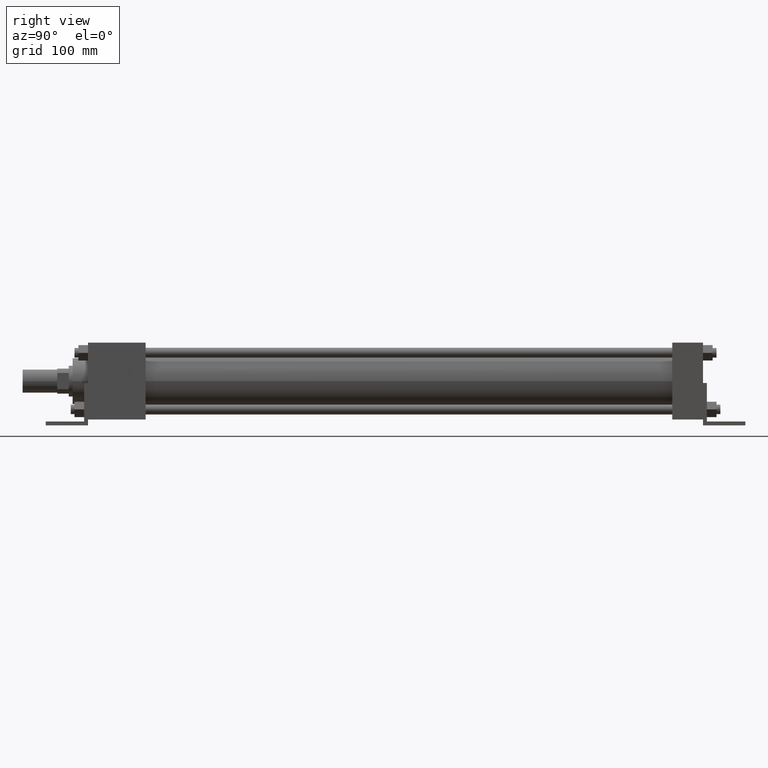
[diagram: clean part render]
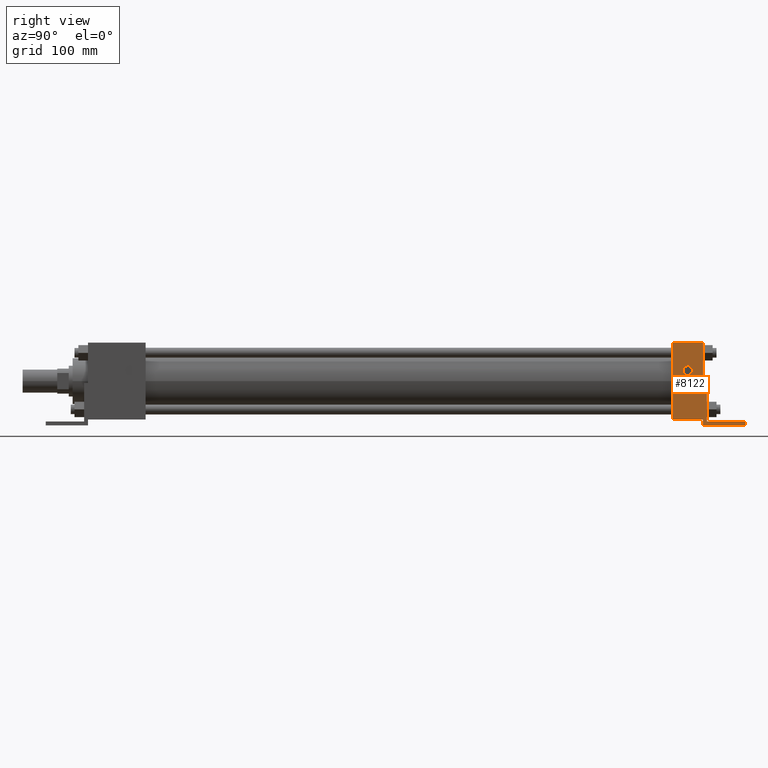
[diagram: same view with one face highlighted and labeled with its STEP entity id]
A machine part, right view. The second image highlights one B-rep face of the part: STEP entity #8122.
In plain terms, the highlighted planar face has unit normal (1, 0, 0).
Its self-contained STEP definition (entity closure, byte-faithful):
#3417=VERTEX_POINT('',#3419);
#3419=CARTESIAN_POINT('',(3.175000000E+001,5.080000000E+002,-3.175000000E+001));
#3420=EDGE_CURVE('',#3417,#3425,#3421,.T.);
#3421=LINE('',#3422,#3423);
#3422=CARTESIAN_POINT('',(3.175000000E+001,5.080000000E+002,-3.175000000E+001));
#3423=VECTOR('',#3424,1.0E+000);
#3424=DIRECTION('',(0.0E+000,0.0E+000,1.0E+000));
#3425=VERTEX_POINT('',#3426);
#3426=CARTESIAN_POINT('',(3.175000000E+001,5.080000000E+002,3.175000000E+001));
#3610=VERTEX_POINT('',#3612);
#3612=CARTESIAN_POINT('',(3.175000000E+001,5.334000000E+002,-1.587500000E+000));
#3625=VERTEX_POINT('',#3626);
#3626=CARTESIAN_POINT('',(3.175000000E+001,5.334000000E+002,3.175000000E+001));
#3627=EDGE_CURVE('',#3610,#3625,#3628,.T.);
#3628=LINE('',#3629,#3630);
#3629=CARTESIAN_POINT('',(3.175000000E+001,5.334000000E+002,-3.175000000E+001));
#3630=VECTOR('',#3631,1.0E+000);
#3631=DIRECTION('',(0.0E+000,0.0E+000,1.0E+000));
#3654=EDGE_CURVE('',#3659,#3417,#3655,.T.);
#3655=LINE('',#3656,#3657);
#3656=CARTESIAN_POINT('',(3.175000000E+001,5.334000000E+002,-3.175000000E+001));
#3657=VECTOR('',#3658,1.0E+000);
#3658=DIRECTION('',(0.0E+000,-1.0E+000,0.0E+000));
#3659=VERTEX_POINT('',#3660);
#3660=CARTESIAN_POINT('',(3.175000000E+001,5.334000000E+002,-3.175000000E+001));
#3678=FACE_OUTER_BOUND('',#3680,.T.);
#3679=FACE_BOUND('',#3681,.T.);
#3680=EDGE_LOOP('',(#3682));
#3681=EDGE_LOOP('',(#3691,#3692,#3693,#3694,#3695,#3696,#3697,#3698,#3699,
   #3700));
#3682=ORIENTED_EDGE('',*,*,#3683,.T.);
#3683=EDGE_CURVE('',#3689,#3689,#3684,.T.);
#3684=CIRCLE('',#3685,3.968750000E+000);
#3685=AXIS2_PLACEMENT_3D('',#3686,#3687,#3688);
#3686=CARTESIAN_POINT('',(3.175000000E+001,5.207000000E+002,8.732520000E+000));
#3687=DIRECTION('',(-1.0E+000,0.0E+000,0.0E+000));
#3688=DIRECTION('',(0.0E+000,0.0E+000,-1.0E+000));
#3689=VERTEX_POINT('',#3690);
#3690=CARTESIAN_POINT('',(3.175000000E+001,5.207000000E+002,4.763770000E+000));
#3691=ORIENTED_EDGE('',*,*,#3701,.T.);
#3692=ORIENTED_EDGE('',*,*,#3420,.F.);
#3693=ORIENTED_EDGE('',*,*,#3654,.F.);
#3694=ORIENTED_EDGE('',*,*,#3706,.F.);
#3695=ORIENTED_EDGE('',*,*,#3713,.F.);
#3696=ORIENTED_EDGE('',*,*,#3720,.F.);
#3697=ORIENTED_EDGE('',*,*,#3727,.F.);
#3698=ORIENTED_EDGE('',*,*,#3734,.F.);
#3699=ORIENTED_EDGE('',*,*,#3741,.F.);
#3700=ORIENTED_EDGE('',*,*,#3627,.T.);
#3701=EDGE_CURVE('',#3625,#3425,#3702,.T.);
#3702=LINE('',#3703,#3704);
#3703=CARTESIAN_POINT('',(3.175000000E+001,5.334000000E+002,3.175000000E+001));
#3704=VECTOR('',#3705,1.0E+000);
#3705=DIRECTION('',(0.0E+000,-1.0E+000,0.0E+000));
#3706=EDGE_CURVE('',#3711,#3659,#3707,.T.);
#3707=LINE('',#3708,#3709);
#3708=CARTESIAN_POINT('',(3.175000000E+001,5.334000000E+002,-3.651250000E+001));
#3709=VECTOR('',#3710,1.0E+000);
#3710=DIRECTION('',(0.0E+000,0.0E+000,1.0E+000));
#3711=VERTEX_POINT('',#3712);
#3712=CARTESIAN_POINT('',(3.175000000E+001,5.334000000E+002,-3.651250000E+001));
#3713=EDGE_CURVE('',#3718,#3711,#3714,.T.);
#3714=LINE('',#3715,#3716);
#3715=CARTESIAN_POINT('',(3.175000000E+001,5.683250000E+002,-3.651250000E+001));
#3716=VECTOR('',#3717,1.0E+000);
#3717=DIRECTION('',(0.0E+000,-1.0E+000,0.0E+000));
#3718=VERTEX_POINT('',#3719);
#3719=CARTESIAN_POINT('',(3.175000000E+001,5.683250000E+002,-3.651250000E+001));
#3720=EDGE_CURVE('',#3725,#3718,#3721,.T.);
#3721=LINE('',#3722,#3723);
#3722=CARTESIAN_POINT('',(3.175000000E+001,5.683250000E+002,-3.651250000E+001));
#3723=VECTOR('',#3724,1.0E+000);
#3724=DIRECTION('',(0.0E+000,0.0E+000,-1.0E+000));
#3725=VERTEX_POINT('',#3726);
#3726=CARTESIAN_POINT('',(3.175000000E+001,5.683250000E+002,-3.333750000E+001));
#3727=EDGE_CURVE('',#3732,#3725,#3728,.T.);
#3728=LINE('',#3729,#3730);
#3729=CARTESIAN_POINT('',(3.175000000E+001,5.365750000E+002,-3.333750000E+001));
#3730=VECTOR('',#3731,1.0E+000);
#3731=DIRECTION('',(0.0E+000,1.0E+000,0.0E+000));
#3732=VERTEX_POINT('',#3733);
#3733=CARTESIAN_POINT('',(3.175000000E+001,5.365750000E+002,-3.333750000E+001));
#3734=EDGE_CURVE('',#3739,#3732,#3735,.T.);
#3735=LINE('',#3736,#3737);
#3736=CARTESIAN_POINT('',(3.175000000E+001,5.365750000E+002,-1.587500000E+000));
#3737=VECTOR('',#3738,1.0E+000);
#3738=DIRECTION('',(0.0E+000,0.0E+000,-1.0E+000));
#3739=VERTEX_POINT('',#3740);
#3740=CARTESIAN_POINT('',(3.175000000E+001,5.365750000E+002,-1.587500000E+000));
#3741=EDGE_CURVE('',#3610,#3739,#3742,.T.);
#3742=LINE('',#3743,#3744);
#3743=CARTESIAN_POINT('',(3.175000000E+001,5.334000000E+002,-1.587500000E+000));
#3744=VECTOR('',#3745,1.0E+000);
#3745=DIRECTION('',(0.0E+000,1.0E+000,0.0E+000));
#3746=PLANE('',#3747);
#3747=AXIS2_PLACEMENT_3D('',#3748,#3749,#3750);
#3748=CARTESIAN_POINT('',(3.175000000E+001,5.334000000E+002,-3.175000000E+001));
#3749=DIRECTION('',(1.0E+000,0.0E+000,0.0E+000));
#3750=DIRECTION('',(0.0E+000,0.0E+000,-1.0E+000));
#8122=ADVANCED_FACE('',(#3678,#3679),#3746,.T.);